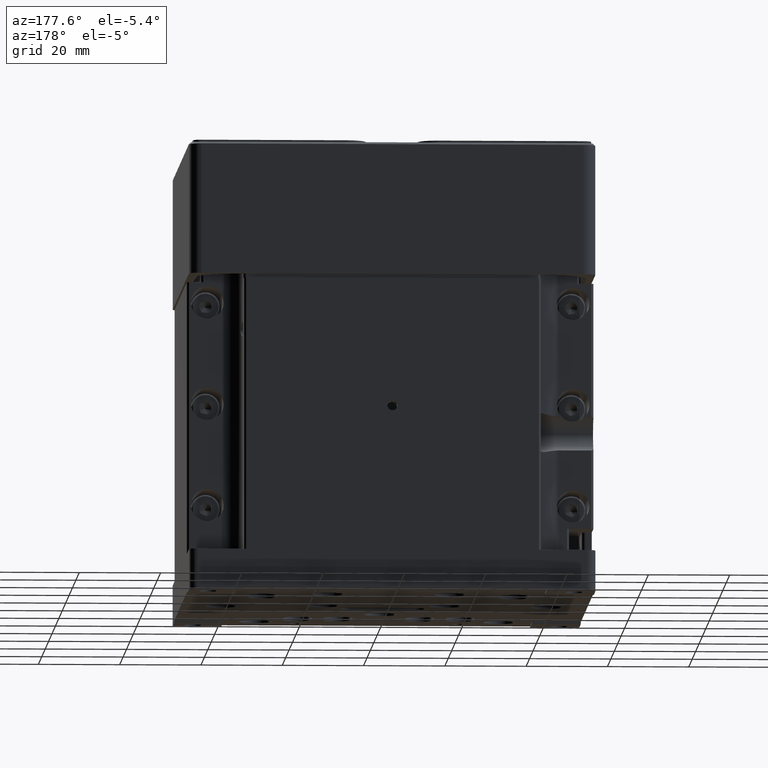
[diagram: clean part render]
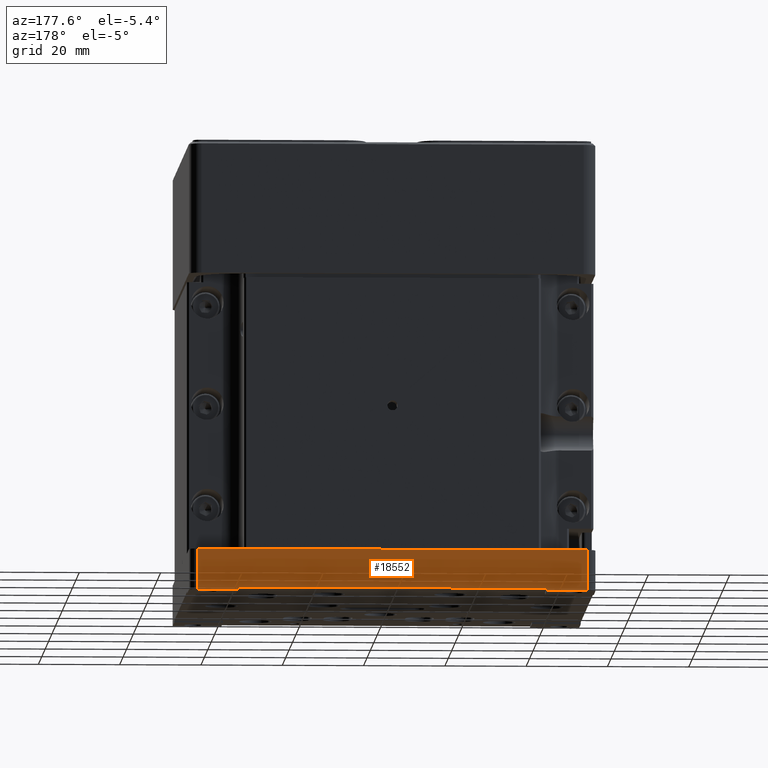
[diagram: same view with one face highlighted and labeled with its STEP entity id]
A machine part, auxiliary view. The second image highlights one B-rep face of the part: STEP entity #18552.
In plain terms, the highlighted planar face has unit normal (0, 1, 0).
Its self-contained STEP definition (entity closure, byte-faithful):
#1193 = VERTEX_POINT ( 'NONE', #19357 ) ;
#1591 = DIRECTION ( 'NONE',  ( -1.000000000000000000, -0.000000000000000000, 0.000000000000000000 ) ) ;
#5049 = ORIENTED_EDGE ( 'NONE', *, *, #21886, .T. ) ;
#5200 = LINE ( 'NONE', #5438, #13109 ) ;
#5438 = CARTESIAN_POINT ( 'NONE',  ( -50.00000000000000000, 50.00000000000000000, -10.00000000000000000 ) ) ;
#6392 = VERTEX_POINT ( 'NONE', #12787 ) ;
#6505 = DIRECTION ( 'NONE',  ( -1.000000000000000000, -0.000000000000000000, 0.000000000000000000 ) ) ;
#7020 = CARTESIAN_POINT ( 'NONE',  ( -37.99999999999999289, 50.00000000000000000, -10.00000000000000000 ) ) ;
#7504 = LINE ( 'NONE', #7020, #11721 ) ;
#7736 = LINE ( 'NONE', #41009, #33685 ) ;
#7884 = ORIENTED_EDGE ( 'NONE', *, *, #45973, .T. ) ;
#9262 = DIRECTION ( 'NONE',  ( 0.000000000000000000, 1.000000000000000000, 0.000000000000000000 ) ) ;
#11569 = VERTEX_POINT ( 'NONE', #32178 ) ;
#11721 = VECTOR ( 'NONE', #37094, 1000.000000000000000 ) ;
#12433 = PLANE ( 'NONE',  #32121 ) ;
#12787 = CARTESIAN_POINT ( 'NONE',  ( 37.99999999999999289, 50.00000000000000711, -9.500000000000000000 ) ) ;
#13109 = VECTOR ( 'NONE', #27935, 1000.000000000000000 ) ;
#13128 = VERTEX_POINT ( 'NONE', #17065 ) ;
#16465 = EDGE_CURVE ( 'NONE', #16527, #11569, #29764, .T. ) ;
#16527 = VERTEX_POINT ( 'NONE', #17964 ) ;
#17065 = CARTESIAN_POINT ( 'NONE',  ( -37.99999999999999289, 50.00000000000000711, -10.00000000000000000 ) ) ;
#17964 = CARTESIAN_POINT ( 'NONE',  ( -48.00000000000000000, 50.00000000000000000, 0.000000000000000000 ) ) ;
#18552 = ADVANCED_FACE ( 'NONE', ( #31054 ), #12433, .T. ) ;
#18968 = LINE ( 'NONE', #34624, #48165 ) ;
#19357 = CARTESIAN_POINT ( 'NONE',  ( 47.99999999999997868, 50.00000000000000000, -10.00000000000000000 ) ) ;
#21886 = EDGE_CURVE ( 'NONE', #13128, #11569, #5200, .T. ) ;
#22610 = CARTESIAN_POINT ( 'NONE',  ( 47.99999999999997868, 50.00000000000000000, 0.000000000000000000 ) ) ;
#26575 = EDGE_CURVE ( 'NONE', #27002, #1193, #34385, .T. ) ;
#26584 = EDGE_CURVE ( 'NONE', #34559, #6392, #7736, .T. ) ;
#26792 = CARTESIAN_POINT ( 'NONE',  ( 0.000000000000000000, 50.00000000000000000, 0.000000000000000000 ) ) ;
#27002 = VERTEX_POINT ( 'NONE', #22610 ) ;
#27402 = VECTOR ( 'NONE', #41490, 1000.000000000000000 ) ;
#27511 = LINE ( 'NONE', #26792, #40759 ) ;
#27935 = DIRECTION ( 'NONE',  ( -1.000000000000000000, -0.000000000000000000, 0.000000000000000000 ) ) ;
#28459 = ORIENTED_EDGE ( 'NONE', *, *, #41433, .T. ) ;
#28690 = ORIENTED_EDGE ( 'NONE', *, *, #16465, .F. ) ;
#29764 = LINE ( 'NONE', #37366, #32419 ) ;
#29982 = CARTESIAN_POINT ( 'NONE',  ( 47.99999999999997158, 50.00000000000000000, -9.500000000000000000 ) ) ;
#31054 = FACE_OUTER_BOUND ( 'NONE', #43777, .T. ) ;
#31371 = CARTESIAN_POINT ( 'NONE',  ( -37.99999999999999289, 50.00000000000000000, -9.500000000000000000 ) ) ;
#32121 = AXIS2_PLACEMENT_3D ( 'NONE', #45971, #9262, #34970 ) ;
#32178 = CARTESIAN_POINT ( 'NONE',  ( -48.00000000000000000, 50.00000000000000000, -10.00000000000000000 ) ) ;
#32419 = VECTOR ( 'NONE', #33689, 1000.000000000000000 ) ;
#33099 = ORIENTED_EDGE ( 'NONE', *, *, #40377, .T. ) ;
#33685 = VECTOR ( 'NONE', #41738, 1000.000000000000000 ) ;
#33689 = DIRECTION ( 'NONE',  ( -0.000000000000000000, -0.000000000000000000, -1.000000000000000000 ) ) ;
#34045 = ORIENTED_EDGE ( 'NONE', *, *, #26575, .T. ) ;
#34385 = LINE ( 'NONE', #29982, #27402 ) ;
#34559 = VERTEX_POINT ( 'NONE', #42577 ) ;
#34624 = CARTESIAN_POINT ( 'NONE',  ( -50.00000000000000000, 50.00000000000000000, -10.00000000000000000 ) ) ;
#34970 = DIRECTION ( 'NONE',  ( 0.000000000000000000, -0.000000000000000000, 1.000000000000000000 ) ) ;
#37094 = DIRECTION ( 'NONE',  ( -0.000000000000000000, -0.000000000000000000, -1.000000000000000000 ) ) ;
#37366 = CARTESIAN_POINT ( 'NONE',  ( -48.00000000000000000, 50.00000000000000000, -9.500000000000000000 ) ) ;
#37816 = DIRECTION ( 'NONE',  ( -1.000000000000000000, -0.000000000000000000, -0.000000000000000000 ) ) ;
#38954 = ORIENTED_EDGE ( 'NONE', *, *, #26584, .T. ) ;
#40377 = EDGE_CURVE ( 'NONE', #1193, #34559, #18968, .T. ) ;
#40759 = VECTOR ( 'NONE', #37816, 1000.000000000000000 ) ;
#41009 = CARTESIAN_POINT ( 'NONE',  ( 37.99999999999999289, 50.00000000000000711, -10.00000000000000000 ) ) ;
#41433 = EDGE_CURVE ( 'NONE', #6392, #46516, #46895, .T. ) ;
#41490 = DIRECTION ( 'NONE',  ( -0.000000000000000000, 0.000000000000000000, -1.000000000000000000 ) ) ;
#41738 = DIRECTION ( 'NONE',  ( -0.000000000000000000, -0.000000000000000000, 1.000000000000000000 ) ) ;
#42577 = CARTESIAN_POINT ( 'NONE',  ( 37.99999999999999289, 50.00000000000000711, -10.00000000000000000 ) ) ;
#43044 = ORIENTED_EDGE ( 'NONE', *, *, #47254, .F. ) ;
#43726 = CARTESIAN_POINT ( 'NONE',  ( -50.00000000000000000, 50.00000000000000000, -9.500000000000000000 ) ) ;
#43777 = EDGE_LOOP ( 'NONE', ( #33099, #38954, #28459, #7884, #5049, #28690, #43044, #34045 ) ) ;
#45971 = CARTESIAN_POINT ( 'NONE',  ( -50.00000000000000000, 50.00000000000000000, -9.500000000000000000 ) ) ;
#45973 = EDGE_CURVE ( 'NONE', #46516, #13128, #7504, .T. ) ;
#46516 = VERTEX_POINT ( 'NONE', #31371 ) ;
#46895 = LINE ( 'NONE', #43726, #47436 ) ;
#47254 = EDGE_CURVE ( 'NONE', #27002, #16527, #27511, .T. ) ;
#47436 = VECTOR ( 'NONE', #6505, 1000.000000000000000 ) ;
#48165 = VECTOR ( 'NONE', #1591, 1000.000000000000000 ) ;